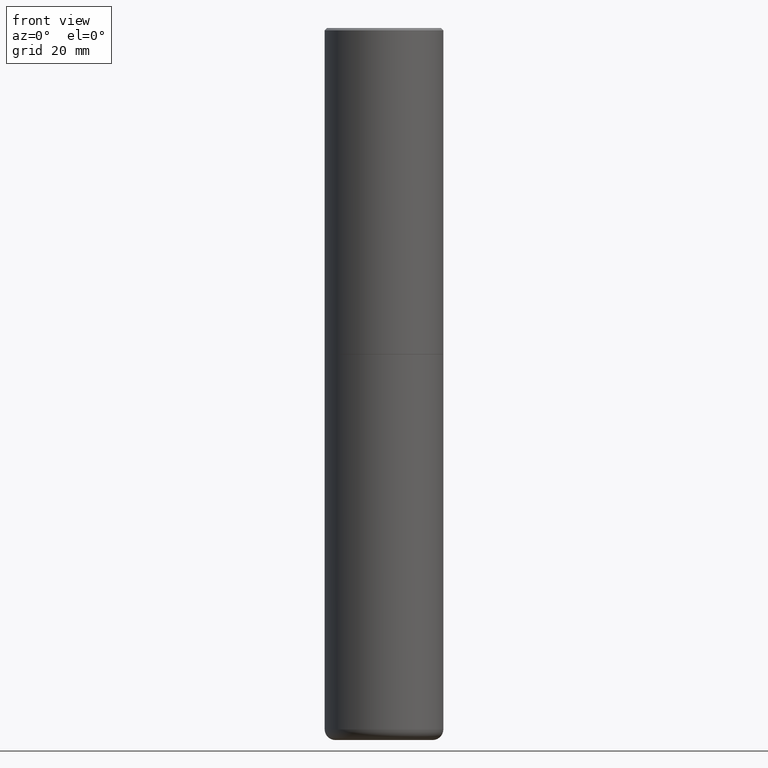
[diagram: clean part render]
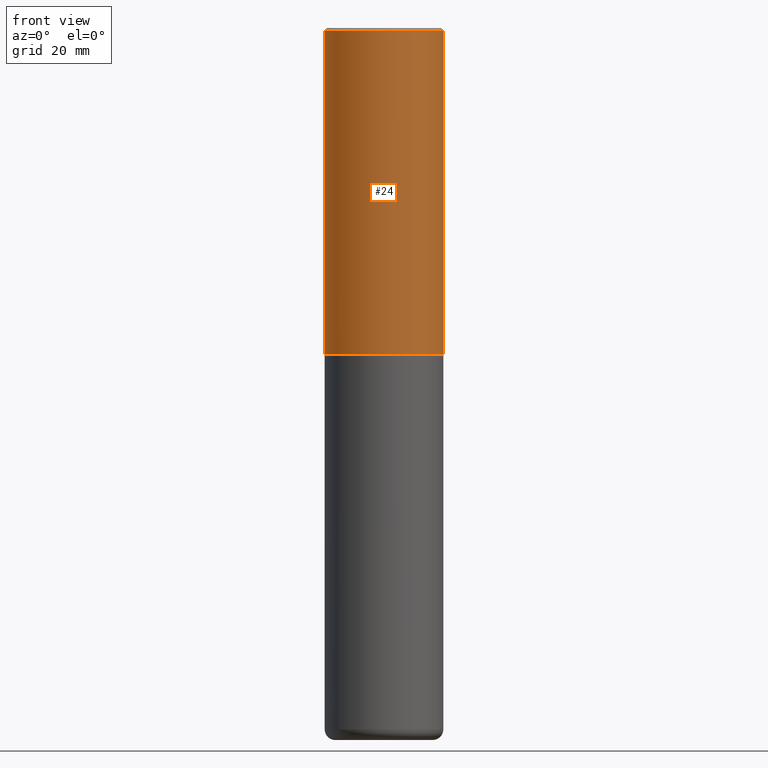
[diagram: same view with one face highlighted and labeled with its STEP entity id]
A machine part, front view. The second image highlights one B-rep face of the part: STEP entity #24.
In plain terms, the highlighted cylindrical surface (partial cylindrical patch) has radius 12.7 mm, axis along (-0, 0, 1).
Its self-contained STEP definition (entity closure, byte-faithful):
#24 = ADVANCED_FACE ( 'NONE', ( #362 ), #86, .T. ) ;
#28 = AXIS2_PLACEMENT_3D ( 'NONE', #93, #474, #173 ) ;
#37 = CARTESIAN_POINT ( 'NONE',  ( 4.890937612370318701E-31, -6.982962677686356937E-17, -0.02000000000000018777 ) ) ;
#58 = CARTESIAN_POINT ( 'NONE',  ( 0.4999999999999995004, -3.491481338843130200E-15, 2.438088387897965374E-29 ) ) ;
#61 = CIRCLE ( 'NONE', #136, 0.4999999999999990563 ) ;
#86 = CYLINDRICAL_SURFACE ( 'NONE', #28, 0.4999999999999995004 ) ;
#93 = CARTESIAN_POINT ( 'NONE',  ( 0.000000000000000000, 0.000000000000000000, 0.000000000000000000 ) ) ;
#121 = CARTESIAN_POINT ( 'NONE',  ( 6.722593748202942280E-29, -9.598082200479810007E-15, -2.749000000000000554 ) ) ;
#136 = AXIS2_PLACEMENT_3D ( 'NONE', #37, #199, #203 ) ;
#164 = DIRECTION ( 'NONE',  ( -2.445468806185136877E-29, 3.491481338843145188E-15, 1.000000000000000000 ) ) ;
#166 = EDGE_LOOP ( 'NONE', ( #269, #407, #393, #306 ) ) ;
#173 = DIRECTION ( 'NONE',  ( 1.000000000000000000, -6.982962677686267499E-15, 4.876176775795935793E-29 ) ) ;
#192 = VECTOR ( 'NONE', #283, 39.37007874015748143 ) ;
#198 = DIRECTION ( 'NONE',  ( -2.445468806185136597E-29, 3.491481338843145583E-15, 1.000000000000000000 ) ) ;
#199 = DIRECTION ( 'NONE',  ( -2.445468806185136597E-29, 3.491481338843145583E-15, 1.000000000000000000 ) ) ;
#202 = CARTESIAN_POINT ( 'NONE',  ( -0.5000000000000000000, -1.281242234827831779E-15, -2.749000000000000554 ) ) ;
#203 = DIRECTION ( 'NONE',  ( 1.000000000000000000, -6.982962677686266711E-15, 0.000000000000000000 ) ) ;
#256 = AXIS2_PLACEMENT_3D ( 'NONE', #121, #198, #391 ) ;
#269 = ORIENTED_EDGE ( 'NONE', *, *, #335, .F. ) ;
#283 = DIRECTION ( 'NONE',  ( -2.445468806185136877E-29, 3.491481338843145188E-15, 1.000000000000000000 ) ) ;
#303 = EDGE_CURVE ( 'NONE', #310, #437, #61, .T. ) ;
#304 = CARTESIAN_POINT ( 'NONE',  ( 0.4999999999999990563, -3.500078625662622374E-15, -0.02000000000000018777 ) ) ;
#306 = ORIENTED_EDGE ( 'NONE', *, *, #303, .F. ) ;
#310 = VERTEX_POINT ( 'NONE', #465 ) ;
#335 = EDGE_CURVE ( 'NONE', #466, #310, #399, .T. ) ;
#340 = CARTESIAN_POINT ( 'NONE',  ( 0.5000000000000000000, -1.308956353932294336E-14, -2.749000000000000554 ) ) ;
#351 = CARTESIAN_POINT ( 'NONE',  ( -0.4999999999999995004, 3.552713678800497379E-15, -2.459467545127450649E-29 ) ) ;
#362 = FACE_OUTER_BOUND ( 'NONE', #166, .T. ) ;
#368 = VECTOR ( 'NONE', #164, 39.37007874015748143 ) ;
#391 = DIRECTION ( 'NONE',  ( 1.000000000000000000, -6.982962677686266711E-15, 0.000000000000000000 ) ) ;
#392 = CIRCLE ( 'NONE', #256, 0.5000000000000000000 ) ;
#393 = ORIENTED_EDGE ( 'NONE', *, *, #443, .T. ) ;
#399 = LINE ( 'NONE', #351, #368 ) ;
#407 = ORIENTED_EDGE ( 'NONE', *, *, #480, .T. ) ;
#413 = LINE ( 'NONE', #58, #192 ) ;
#427 = VERTEX_POINT ( 'NONE', #340 ) ;
#437 = VERTEX_POINT ( 'NONE', #304 ) ;
#443 = EDGE_CURVE ( 'NONE', #427, #437, #413, .T. ) ;
#465 = CARTESIAN_POINT ( 'NONE',  ( -0.4999999999999990563, 3.421651712066263352E-15, -0.02000000000000018777 ) ) ;
#466 = VERTEX_POINT ( 'NONE', #202 ) ;
#474 = DIRECTION ( 'NONE',  ( -2.445468806185136597E-29, 3.491481338843145583E-15, 1.000000000000000000 ) ) ;
#480 = EDGE_CURVE ( 'NONE', #466, #427, #392, .T. ) ;